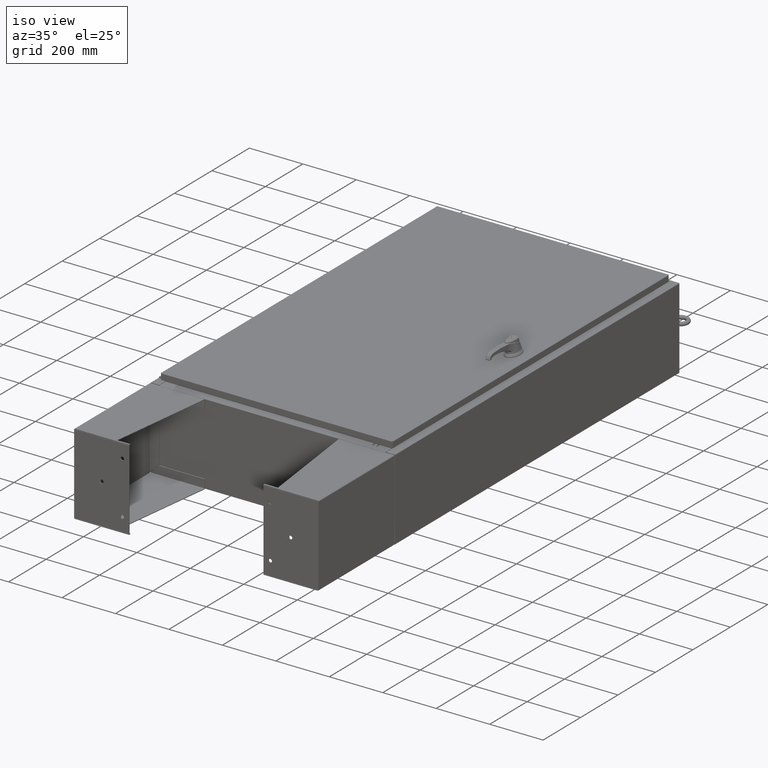
[diagram: clean part render]
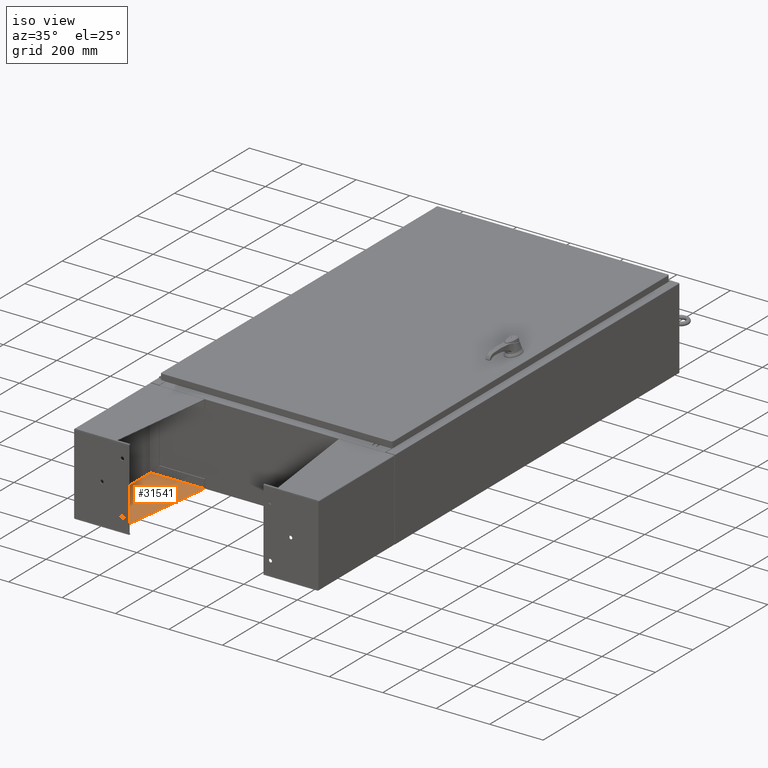
[diagram: same view with one face highlighted and labeled with its STEP entity id]
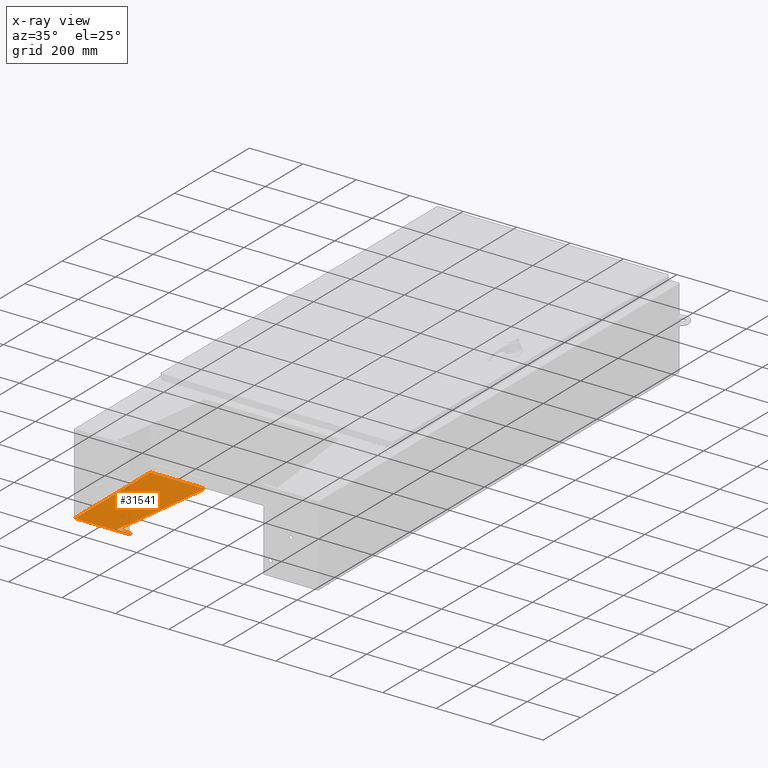
[diagram: x-ray of the same camera — body ghosted, the highlighted face saturated]
A machine part, iso view. The second image highlights one B-rep face of the part: STEP entity #31541.
The next image is the same camera in x-ray: the body ghosted, the highlighted face saturated — about 5% of this face is hidden behind the body in this view.
In plain terms, the highlighted planar face has unit normal (-0, -0, 1).
Its self-contained STEP definition (entity closure, byte-faithful):
#2278 = LINE ( 'NONE', #40335, #58836 ) ;
#3417 = CARTESIAN_POINT ( 'NONE',  ( 5.896000000000023000, -7.749999999999999100, 6.052216497445950700 ) ) ;
#5485 = ORIENTED_EDGE ( 'NONE', *, *, #140290, .F. ) ;
#6838 = VECTOR ( 'NONE', #138906, 39.37007874015748100 ) ;
#11310 = EDGE_CURVE ( 'NONE', #78234, #15354, #129871, .T. ) ;
#13523 = ORIENTED_EDGE ( 'NONE', *, *, #30915, .T. ) ;
#15354 = VERTEX_POINT ( 'NONE', #63915 ) ;
#16962 = ORIENTED_EDGE ( 'NONE', *, *, #91516, .F. ) ;
#21280 = EDGE_CURVE ( 'NONE', #77344, #120271, #36885, .T. ) ;
#26799 = CARTESIAN_POINT ( 'NONE',  ( 5.895999999999999900, -7.999999999999999100, 0.03900000000001561900 ) ) ;
#30915 = EDGE_CURVE ( 'NONE', #49737, #77344, #2278, .T. ) ;
#31541 = ADVANCED_FACE ( 'NONE', ( #143751 ), #108453, .T. ) ;
#32263 = EDGE_CURVE ( 'NONE', #49737, #66700, #136536, .T. ) ;
#32359 = AXIS2_PLACEMENT_3D ( 'NONE', #57871, #119762, #51975 ) ;
#33457 = ORIENTED_EDGE ( 'NONE', *, *, #21280, .T. ) ;
#34571 = VECTOR ( 'NONE', #59772, 39.37007874015748100 ) ;
#36885 = LINE ( 'NONE', #3417, #6838 ) ;
#39581 = VECTOR ( 'NONE', #60391, 39.37007874015748100 ) ;
#40335 = CARTESIAN_POINT ( 'NONE',  ( 5.896000000000028300, -7.749999999999999100, 8.001000000000031400 ) ) ;
#49737 = VERTEX_POINT ( 'NONE', #131612 ) ;
#49865 = CARTESIAN_POINT ( 'NONE',  ( 5.896000000000029200, -7.999999999999999100, 8.001000000000015400 ) ) ;
#50146 = CARTESIAN_POINT ( 'NONE',  ( 5.896000000000029200, -7.999999999999999100, 8.001000000000015400 ) ) ;
#51750 = DIRECTION ( 'NONE',  ( -3.550958521948298200E-015, 0.0000000000000000000, -1.000000000000000000 ) ) ;
#51975 = DIRECTION ( 'NONE',  ( 3.550958521948298200E-015, 0.0000000000000000000, 1.000000000000000000 ) ) ;
#56907 = DIRECTION ( 'NONE',  ( 0.0000000000000000000, 0.0000000000000000000, 1.000000000000000000 ) ) ;
#57004 = CARTESIAN_POINT ( 'NONE',  ( 5.896000000000020300, -7.749999999999999100, 6.052216497445950700 ) ) ;
#57871 = CARTESIAN_POINT ( 'NONE',  ( 5.896000000000029200, -7.999999999999999100, 8.001000000000015400 ) ) ;
#58836 = VECTOR ( 'NONE', #51750, 39.37007874015748100 ) ;
#59772 = DIRECTION ( 'NONE',  ( -3.550958521948298200E-015, -0.0000000000000000000, -1.000000000000000000 ) ) ;
#60391 = DIRECTION ( 'NONE',  ( 0.0000000000000000000, 1.000000000000000000, 0.0000000000000000000 ) ) ;
#63915 = CARTESIAN_POINT ( 'NONE',  ( 5.895999999999999900, 7.857000000000002000, 0.03900000000001561900 ) ) ;
#66700 = VERTEX_POINT ( 'NONE', #50146 ) ;
#68222 = CARTESIAN_POINT ( 'NONE',  ( 5.896000000000014100, 7.857000000000001100, 0.03900000000001561900 ) ) ;
#71278 = VECTOR ( 'NONE', #56907, 39.37007874015748100 ) ;
#74848 = LINE ( 'NONE', #68222, #71278 ) ;
#76366 = VECTOR ( 'NONE', #140327, 39.37007874015748100 ) ;
#77344 = VERTEX_POINT ( 'NONE', #57004 ) ;
#78234 = VERTEX_POINT ( 'NONE', #133835 ) ;
#91516 = EDGE_CURVE ( 'NONE', #66700, #78234, #124893, .T. ) ;
#98222 = CARTESIAN_POINT ( 'NONE',  ( 5.896000000000029200, 7.857000000000002000, 8.001000000000015400 ) ) ;
#104781 = ORIENTED_EDGE ( 'NONE', *, *, #11310, .F. ) ;
#104919 = CARTESIAN_POINT ( 'NONE',  ( 5.895999999999999900, -7.999999999999999100, 1.529834876451987200E-014 ) ) ;
#108453 = PLANE ( 'NONE',  #32359 ) ;
#119762 = DIRECTION ( 'NONE',  ( -1.000000000000000000, 0.0000000000000000000, 3.550958521948298200E-015 ) ) ;
#120271 = VERTEX_POINT ( 'NONE', #98222 ) ;
#124893 = LINE ( 'NONE', #104919, #34571 ) ;
#129871 = LINE ( 'NONE', #26799, #39581 ) ;
#131612 = CARTESIAN_POINT ( 'NONE',  ( 5.896000000000028300, -7.749999999999999100, 8.001000000000031400 ) ) ;
#133835 = CARTESIAN_POINT ( 'NONE',  ( 5.895999999999999900, -7.999999999999999100, 0.03900000000001561900 ) ) ;
#136536 = LINE ( 'NONE', #49865, #76366 ) ;
#138906 = DIRECTION ( 'NONE',  ( 4.399772607369798900E-016, 0.9922942345449394800, 0.1239038017531047700 ) ) ;
#140290 = EDGE_CURVE ( 'NONE', #15354, #120271, #74848, .T. ) ;
#140327 = DIRECTION ( 'NONE',  ( -0.0000000000000000000, -1.000000000000000000, -0.0000000000000000000 ) ) ;
#143751 = FACE_OUTER_BOUND ( 'NONE', #143917, .T. ) ;
#143917 = EDGE_LOOP ( 'NONE', ( #145778, #13523, #33457, #5485, #104781, #16962 ) ) ;
#145778 = ORIENTED_EDGE ( 'NONE', *, *, #32263, .F. ) ;